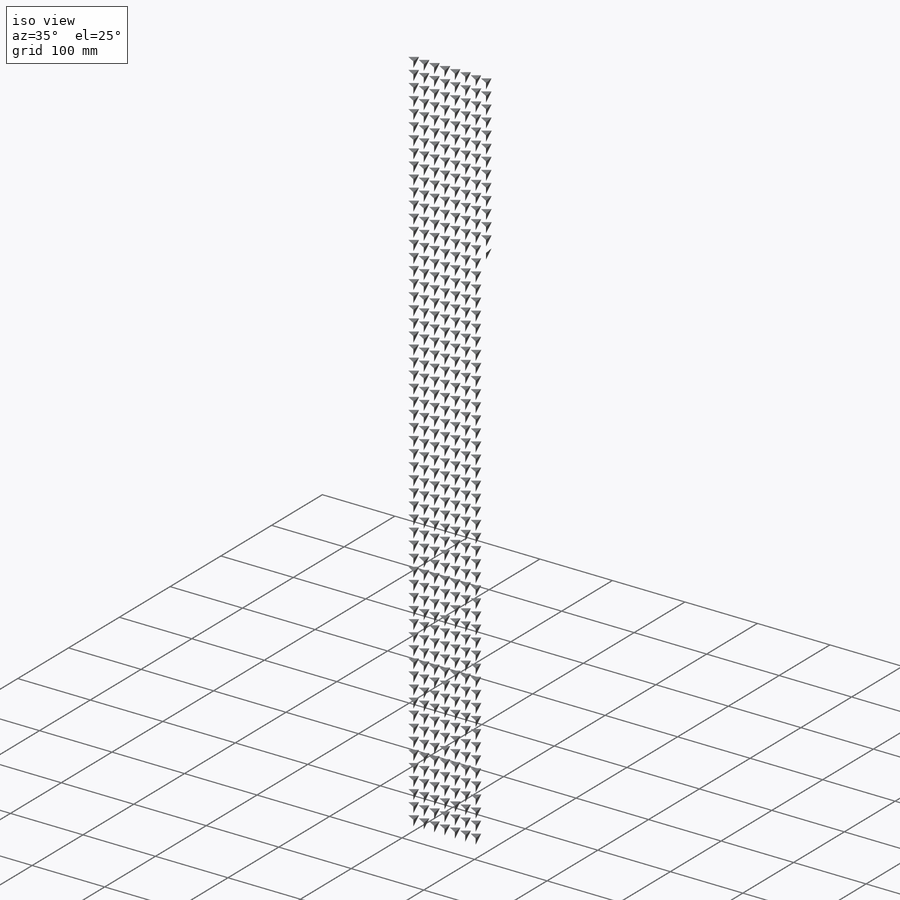
[diagram: iso view]
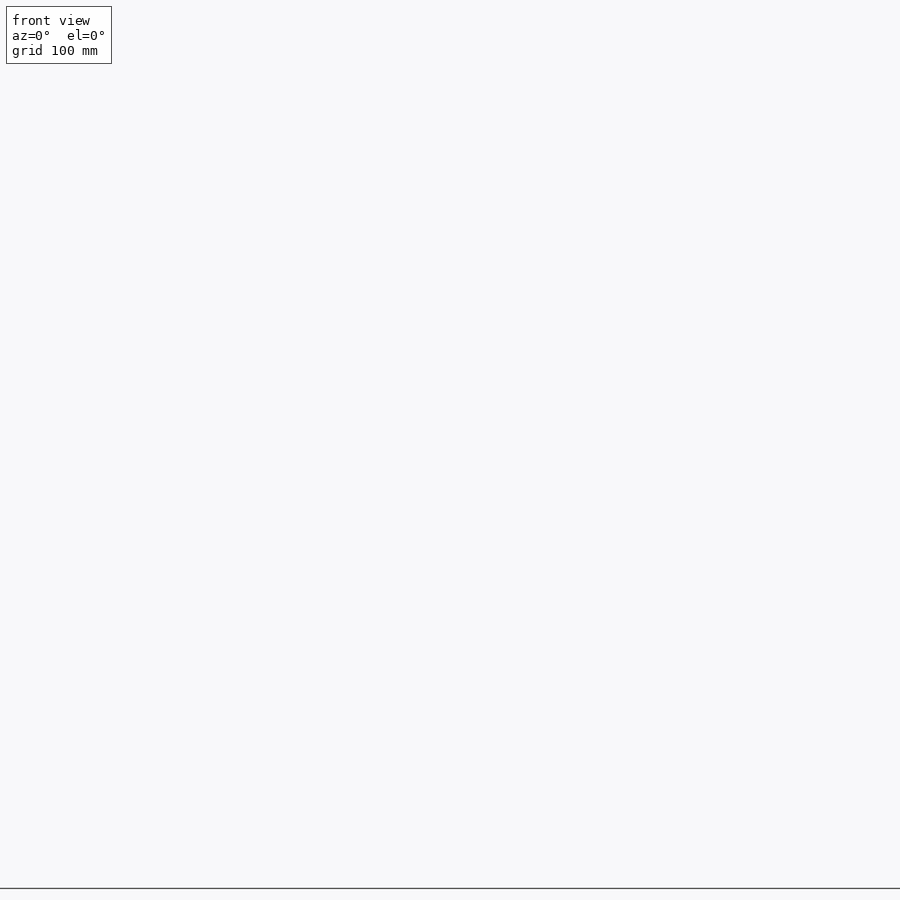
[diagram: front view]
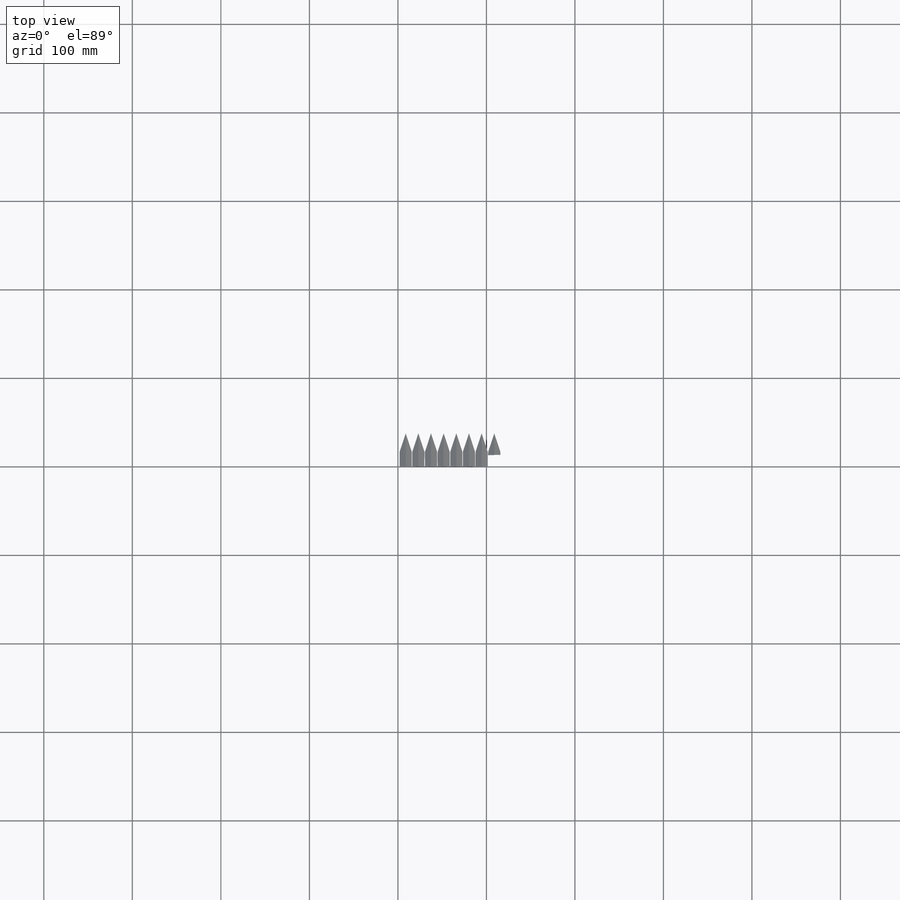
[diagram: top view]
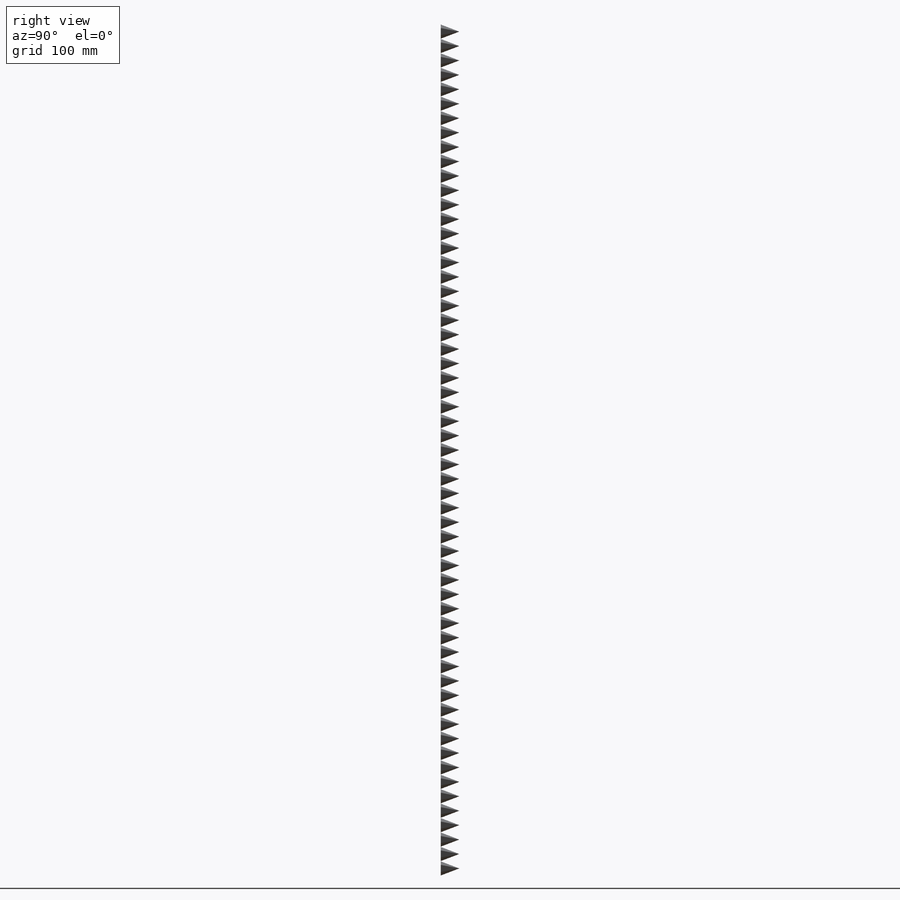
[diagram: right view]
SOLIDWORKS PART (.sldprt)
format: sldprt  version: not decoded by parser v0  size: 11,312,128 bytes
history: native  units: mm
features: sketch x11, plane x11, extrude x9, pattern_linear x2, material x1, cut_extrude x1 (+16 scaffold rows collapsed)
feature tree (51):
  scaffold x16  (default folders/planes/origin — collapsed)
  material  "Material <not specified>"
  sketch  "Sketch1"  dims[c1.D1=128.5875mm c1.D2=101.6mm c2.D2=177.8mm c2.D1=973.1375mm]
  extrude  "Extrude1"  Depth=0.4mm
  sketch  "Sketch7"  dims[c1.SIDECELL=10.0mm c1.D1=10.0mm c2.D1=90.0deg c3.D1=3.175mm c3.D2=15.0mm c3.SIDEUP=8.0mm c3.D3=8.0mm c3.D4=40.0deg c4.D4=8.0mm c4.D5=30.0deg c5.D5=8.0mm c5.D6=8.0mm c5.D7=150.0deg]
  cut_extrude  "Extrude14"  [1 undecoded]
  plane  "Plane26"
  sketch  "Sketch33"  dims[D1=8.0mm HUP=21.0mm D2=8.0mm]
  plane  "Plane27"
  plane  "Plane28"
  plane  "Plane29"
  plane  "Plane30"
  plane  "Plane31"
  plane  "Plane32"
  plane  "Plane34"
  plane  "Plane35"
  plane  "Plane36"
  plane  "Plane37"
  sketch  "Sketch44"  dims[D1=~6.928203mm D2=3.0mm D3=1.0mm]
  extrude  "Extrude32"  [1 undecoded]
  sketch  "Sketch45"  dims[D1=~6.928203mm D2=3.0mm D3=1.0mm]
  extrude  "Extrude33"  [1 undecoded]
  sketch  "Sketch46"  dims[D1=~6.928203mm D2=3.0mm D3=1.0mm]
  extrude  "Extrude34"  [1 undecoded]
  sketch  "Sketch48"  dims[D1=3.0mm D2=~6.928203mm D3=1.0mm]
  extrude  "Extrude35"  [1 undecoded]
  sketch  "Sketch49"  dims[D1=3.0mm D2=~6.928203mm D3=1.0mm]
  extrude  "Extrude36"  [1 undecoded]
  sketch  "Sketch50"  dims[D1=3.0mm D2=~6.928203mm D3=1.0mm]
  extrude  "Extrude37"  [1 undecoded]
  sketch  "Sketch51"  dims[HOLESIDE=7.4mm D1=7.4mm D2=7.4mm D3=7.4mm D4=7.4mm D5=7.4mm]
  extrude  "Extrude38"  Depth=0.4mm
  pattern_linear  "LPattern29"  Count1=59 Count2=12 Spacing1=16.3mm Spacing2=14.3mm
  sketch  "Sketch52"  dims[HOLE=1.0mm D1=1.0mm D2=1.0mm D3=1.0mm D4=1.0mm D5=1.0mm]
  extrude  "Extrude39"  Depth=0.4mm
  pattern_linear  "LPattern33"  Count1=59 Count2=12 Spacing1=16.3mm Spacing2=14.3mm FROMTOP=3mm FROMSIDE=1mm
decode coverage: 16 of 23 modeling features carry decoded parameters
note: ~ marks probable driven/reference dimensions
note: 7 parameter values undecoded
summary: no parameter record found for 7 features
note: suppression state not decoded; provenance and decode notes live in map.json
